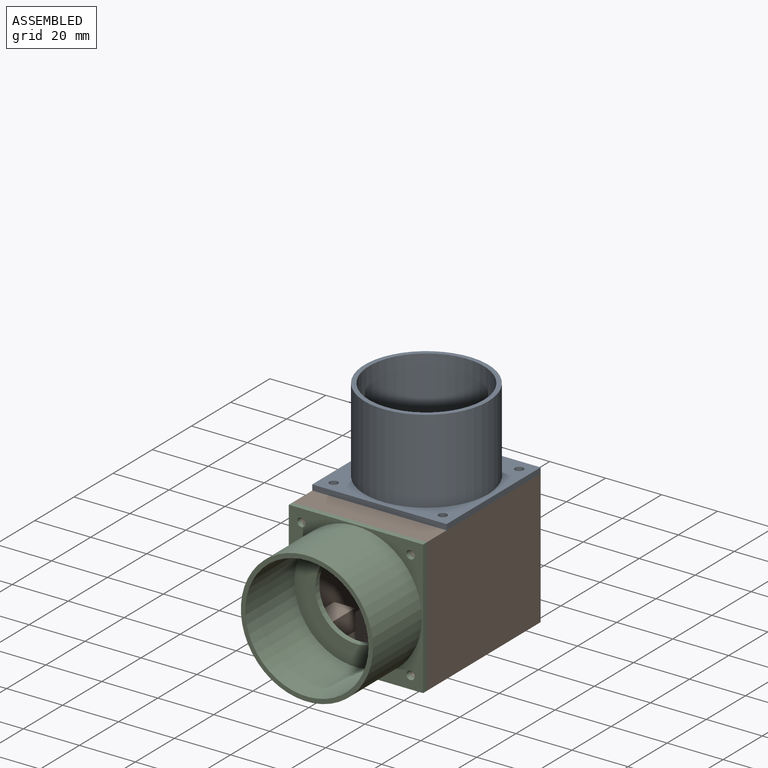
[diagram: assembled view]
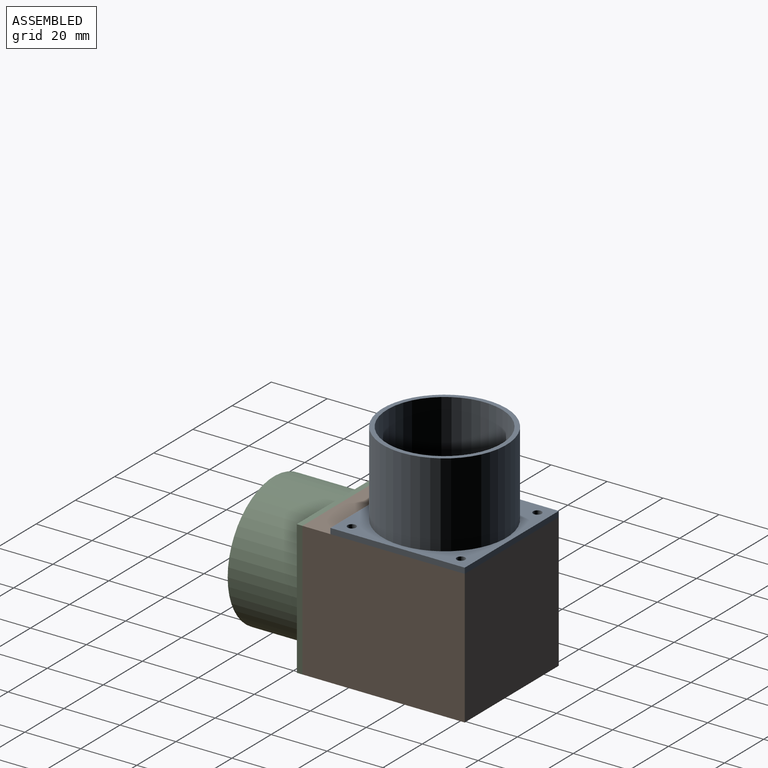
[diagram: assembled view, second angle]
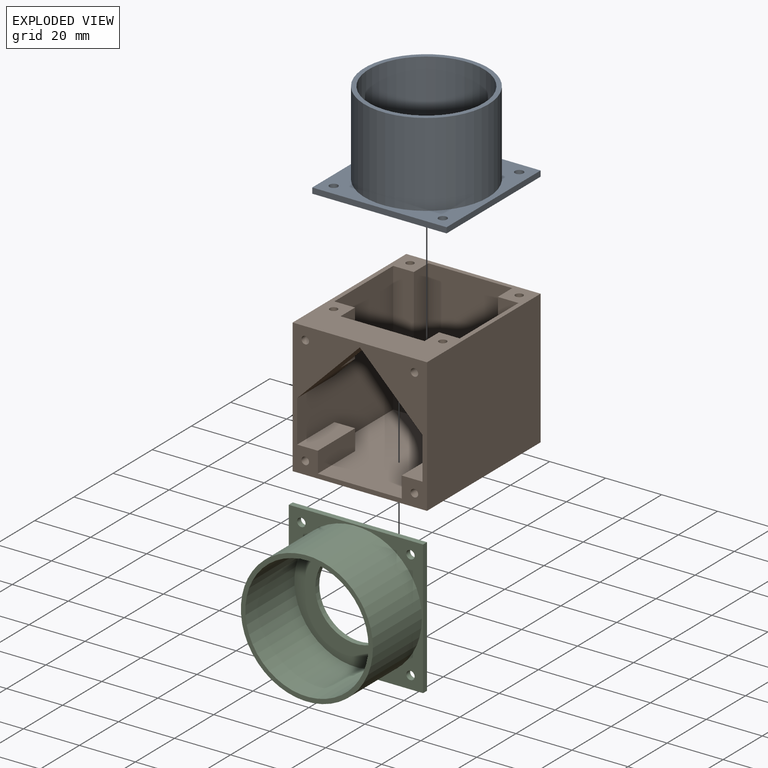
[diagram: exploded view]
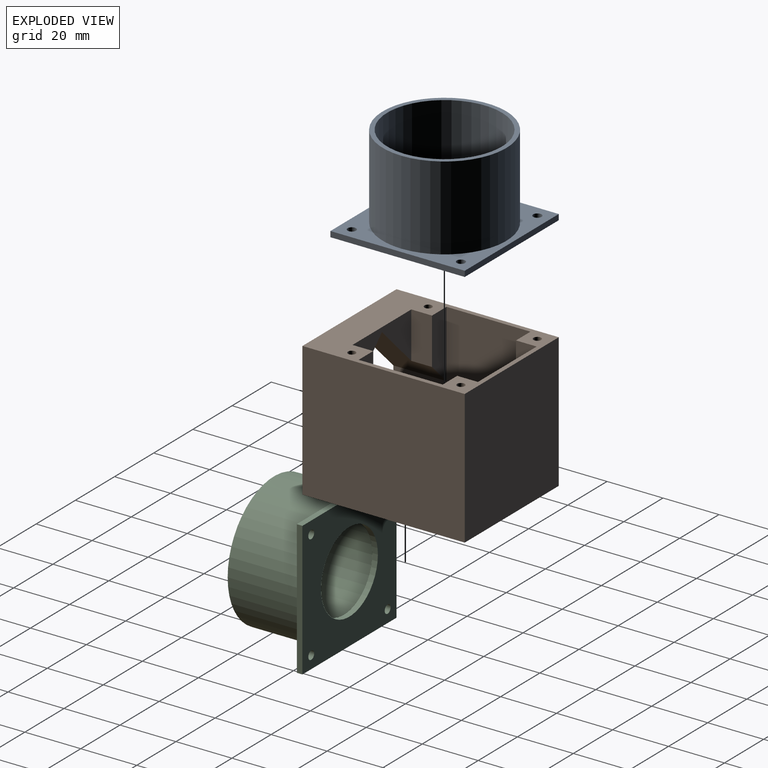
[diagram: exploded view, second angle]
ASSEMBLY  parts=3 mates=2
PART A: 15 faces, bbox 48x48x32 mm
  f0: plane 41x41mm, normal (0,0,1), area 659.7mm2, adj f4,f12
  f1: plane 48x2mm, normal (1,0,0), area 96mm2, adj f2,f8,f10,f11
  f2: plane 48x2mm, normal (0,1,0), area 96mm2, adj f1,f3,f10,f11
  f3: plane 48x2mm, normal (-1,0,0), area 96mm2, adj f2,f8,f10,f11
  f4: cylinder r=14.5mm len=29mm, axis (0,0,-1), area 182.2mm2, adj f0,f11
  f5: cylinder r=1.5mm len=3mm, axis (0,0,-1), area 18.8mm2, adj f10,f11
  f6: cylinder r=1.5mm len=3mm, axis (0,0,-1), area 18.8mm2, adj f10,f11
  f7: cylinder r=1.5mm len=3mm, axis (0,0,-1), area 18.8mm2, adj f10,f11
  f8: plane 48x2mm, normal (0,-1,0), area 96mm2, adj f1,f3,f10,f11
  f9: cylinder r=1.5mm len=3mm, axis (0,0,-1), area 18.8mm2, adj f10,f11
  f10: plane 48x48mm, normal (0,0,1), area 741.3mm2, adj f1,f2,f3,f5,f6,f7,f8,f9
  f11: plane 48x48mm, normal (0,0,-1), area 1615.2mm2, adj f1,f2,f3,f4,f5,f6,f7,f8
  f12: cylinder r=20.5mm len=41mm, axis (0,0,-1), area 3864.2mm2, adj f0,f14
  f13: cylinder r=22.1mm len=44.2mm, axis (0,0,-1), area 4165.8mm2, adj f10,f14
  f14: plane 44.2x44.2mm, normal (0,0,1), area 214.1mm2, adj f12,f13
PART B: 43 faces, bbox 48x58x48 mm
  f0: plane 48x48mm, normal (0,-1,0), area 885.3mm2, adj f1,f7,f9,f10,f11,f13,f14,f16
  f1: plane 58x48mm, normal (0,0,1), area 973.1mm2, adj f0,f2,f3,f4,f5,f6,f7,f8
  f2: plane 24x7.4mm, normal (0,1,0), area 150.2mm2, adj f1,f4,f11,f23
  f3: plane 24x7.4mm, normal (0,1,0), area 150.2mm2, adj f1,f6,f16,f24
  f4: plane 16.6x7.4mm, normal (1,0,0), area 122.8mm2, adj f1,f2,f5,f23
  f5: plane 30x16.6mm, normal (0,1,0), area 273mm2, adj f1,f4,f6,f23,f24
  f6: plane 16.6x7.4mm, normal (-1,0,0), area 122.8mm2, adj f1,f3,f5,f24
  f7: plane 58x48mm, normal (1,0,0), area 2784mm2, adj f0,f1,f8,f10
  f8: plane 48x48mm, normal (0,1,0), area 2304mm2, adj f1,f7,f9,f10
  f9: plane 58x48mm, normal (-1,0,0), area 2784mm2, adj f0,f1,f8,f10
  f10: plane 58x48mm, normal (0,0,-1), area 2784mm2, adj f0,f7,f8,f9
  f11: plane 49x46.4mm, normal (1,0,0), area 1677mm2, adj f0,f1,f2,f12,f21,f22,f23,f26
  f12: plane 7.4x7.4mm, normal (0,1,0), area 54.8mm2, adj f11,f13,f22,f26
  f13: plane 19x7.4mm, normal (1,0,0), area 140.6mm2, adj f0,f12,f22,f26
  f14: plane 19x7.4mm, normal (-1,0,0), area 140.6mm2, adj f0,f15,f22,f25
  f15: plane 7.4x7.4mm, normal (0,1,0), area 54.8mm2, adj f14,f16,f22,f25
  f16: plane 49x46.4mm, normal (-1,0,0), area 1677mm2, adj f0,f1,f3,f15,f17,f22,f24,f25
  f17: plane 46.4x7.4mm, normal (0,-1,0), area 343.4mm2, adj f1,f16,f18,f22
  f18: plane 46.4x7.4mm, normal (-1,0,0), area 343.4mm2, adj f1,f17,f19,f22
  f19: plane 46.4x30mm, normal (0,-1,0), area 1392mm2, adj f1,f18,f20,f22
  f20: plane 46.4x7.4mm, normal (1,0,0), area 343.4mm2, adj f1,f19,f21,f22
  f21: plane 46.4x7.4mm, normal (0,-1,0), area 343.4mm2, adj f1,f11,f20,f22
  f22: plane 56.4x44.8mm, normal (0,0,1), area 2136mm2, adj f0,f11,f12,f13,f14,f15,f16,f17
  f23: plane 22.4x22.4mm, normal (0.71,0,-0.71), area 444.9mm2, adj f0,f2,f4,f5,f11,f24
  f24: plane 22.4x22.4mm, normal (-0.71,0,-0.71), area 444.9mm2, adj f0,f3,f5,f6,f16,f23
  f25: plane 19x7.4mm, normal (0,0,1), area 140.6mm2, adj f0,f14,f15,f16
  f26: plane 19x7.4mm, normal (0,0,1), area 140.6mm2, adj f0,f11,f12,f13
  f27: cylinder r=1.35mm len=10mm, axis (0,0,1), area 84.8mm2, adj f1,f28
  f28: plane 2.7x2.7mm, normal (0,0,1), area 5.7mm2, adj f27
  f29: cylinder r=1.35mm len=10mm, axis (0,0,1), area 84.8mm2, adj f1,f30
  f30: plane 2.7x2.7mm, normal (0,0,1), area 5.7mm2, adj f29
  f31: cylinder r=1.35mm len=10mm, axis (0,0,1), area 84.8mm2, adj f1,f32
  f32: plane 2.7x2.7mm, normal (0,0,1), area 5.7mm2, adj f31
  f33: cylinder r=1.35mm len=10mm, axis (0,0,1), area 84.8mm2, adj f1,f34
  f34: plane 2.7x2.7mm, normal (0,0,1), area 5.7mm2, adj f33
  f35: cylinder r=1.35mm len=10mm, axis (0,-1,0), area 84.8mm2, adj f0,f36
  f36: plane 2.7x2.7mm, normal (0,-1,0), area 5.7mm2, adj f35
  f37: cylinder r=1.35mm len=10mm, axis (0,-1,0), area 84.8mm2, adj f0,f38
  f38: plane 2.7x2.7mm, normal (0,-1,0), area 5.7mm2, adj f37
  f39: cylinder r=1.35mm len=10mm, axis (0,-1,0), area 84.8mm2, adj f0,f40
  f40: plane 2.7x2.7mm, normal (0,-1,0), area 5.7mm2, adj f39
  f41: cylinder r=1.35mm len=10mm, axis (0,-1,0), area 84.8mm2, adj f0,f42
  f42: plane 2.7x2.7mm, normal (0,-1,0), area 5.7mm2, adj f41
PART C: 15 faces, bbox 48x48x27 mm
  f0: plane 44x44mm, normal (0,0,1), area 860mm2, adj f7,f12
  f1: plane 48x2mm, normal (1,0,0), area 96mm2, adj f2,f8,f10,f11
  f2: plane 48x2mm, normal (0,1,0), area 96mm2, adj f1,f3,f10,f11
  f3: plane 48x2mm, normal (-1,0,0), area 96mm2, adj f2,f8,f10,f11
  f4: cylinder r=1.5mm len=3mm, axis (0,0,-1), area 18.8mm2, adj f10,f11
  f5: cylinder r=1.5mm len=3mm, axis (0,0,-1), area 18.8mm2, adj f10,f11
  f6: cylinder r=1.5mm len=3mm, axis (0,0,-1), area 18.8mm2, adj f10,f11
  f7: cylinder r=14.5mm len=29mm, axis (0,0,-1), area 182.2mm2, adj f0,f11
  f8: plane 48x2mm, normal (0,-1,0), area 96mm2, adj f1,f3,f10,f11
  f9: cylinder r=1.5mm len=3mm, axis (0,0,-1), area 18.8mm2, adj f10,f11
  f10: plane 48x48mm, normal (0,0,1), area 526mm2, adj f1,f2,f3,f4,f5,f6,f8,f9
  f11: plane 48x48mm, normal (0,0,-1), area 1615.2mm2, adj f1,f2,f3,f4,f5,f6,f7,f8
  f12: cylinder r=22mm len=44mm, axis (0,0,-1), area 3455.8mm2, adj f0,f14
  f13: cylinder r=23.6mm len=47.2mm, axis (0,0,-1), area 3707.1mm2, adj f10,f14
  f14: plane 47.2x47.2mm, normal (0,0,1), area 229.2mm2, adj f12,f13
PLACE A rot(axis=(0,-1,0),0deg) t=(0,0,67.9)mm
PLACE B rot(axis=(0,-1,0),0deg) t=(0,-5,19.9)mm
PLACE C rot(axis=(1,0,0),90deg) t=(0,-34,43.9)mm
MATE fastened B.f41 <-> C.f6  axis (0,-1,0) through (19.5,-34,63.4)mm
MATE fastened B.f29 <-> A.f9  axis (0,0,1) through (19.5,-19.5,67.9)mm
